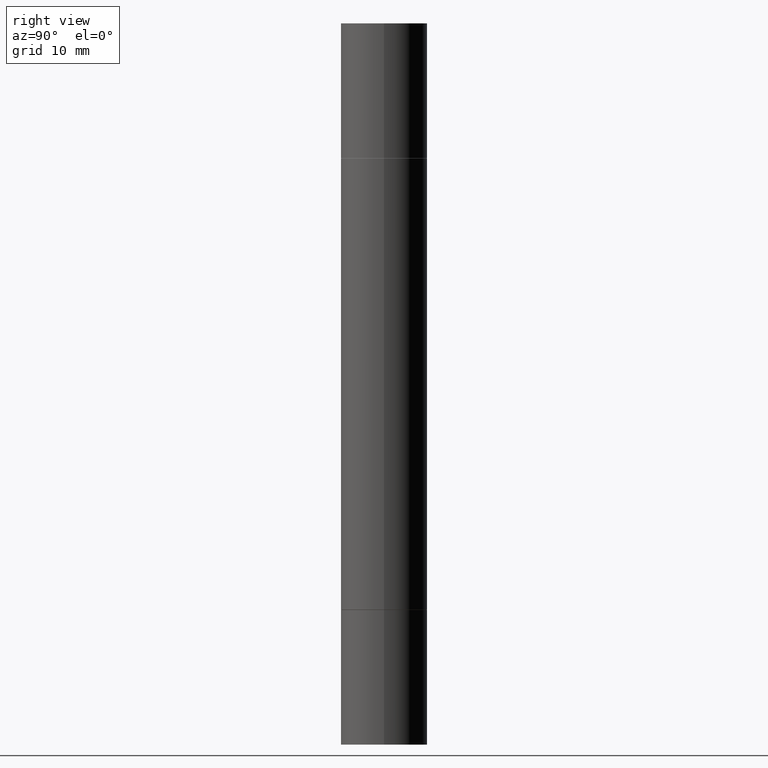
[diagram: clean part render]
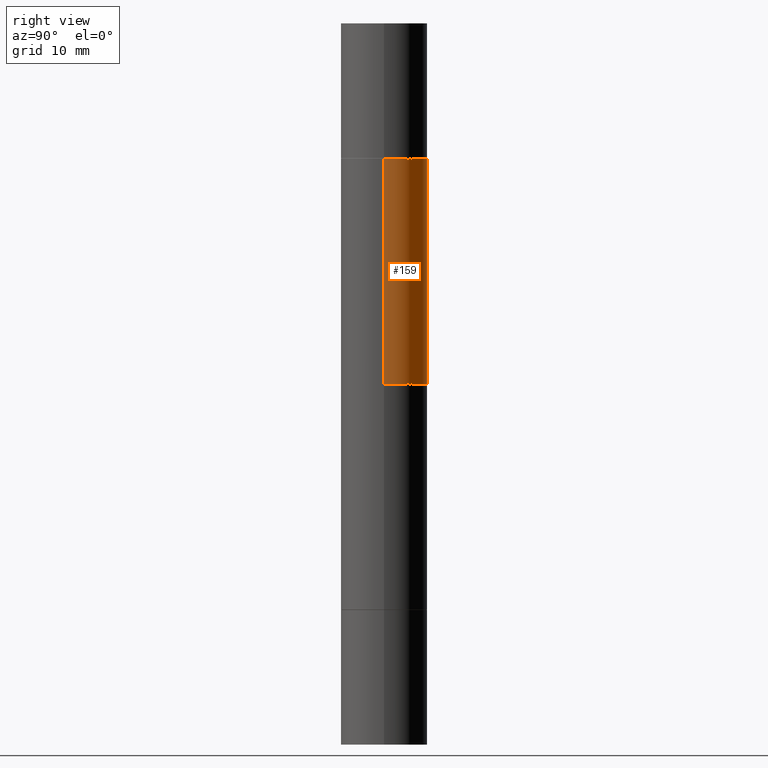
[diagram: same view with one face highlighted and labeled with its STEP entity id]
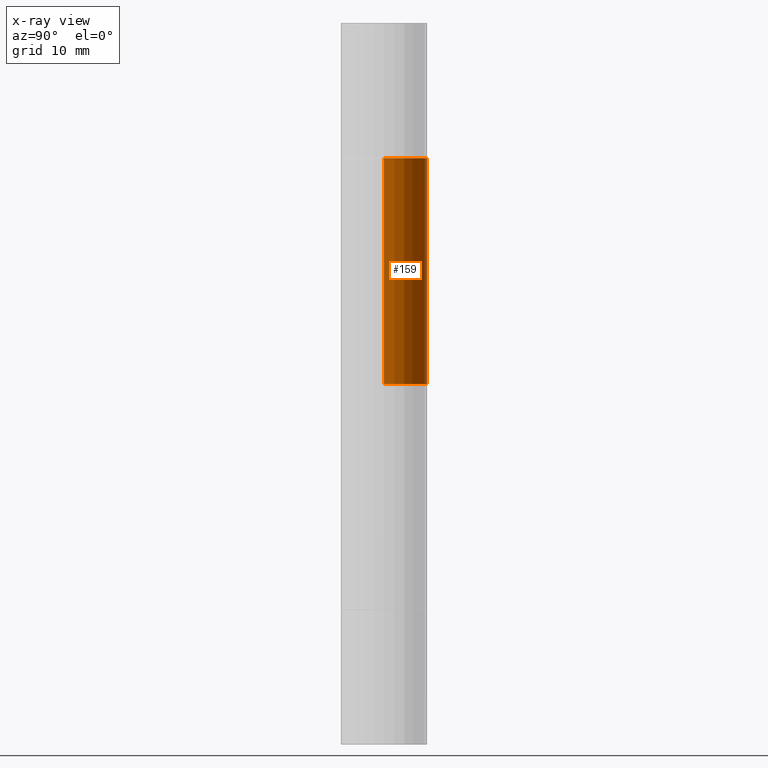
[diagram: x-ray of the same camera — body ghosted, the highlighted face saturated]
A machine part, right view. The second image highlights one B-rep face of the part: STEP entity #159.
The next image is the same camera in x-ray: the body ghosted, the highlighted face saturated — about 0% of this face is hidden behind the body in this view.
In plain terms, the highlighted cylindrical surface (partial cylindrical patch) has radius 4.4996 mm, axis along (-0, -0, -1).
Its self-contained STEP definition (entity closure, byte-faithful):
#3 = CARTESIAN_POINT ( 'NONE',  ( 0.1771500000000000019, -3.163725568664010262E-15, -0.5521999999999996911 ) ) ;
#11 = CARTESIAN_POINT ( 'NONE',  ( -0.1771499999999998909, -2.325421169184726863E-15, -1.476399999999999491 ) ) ;
#29 = CYLINDRICAL_SURFACE ( 'NONE', #38, 0.1771499999999998909 ) ;
#32 = VERTEX_POINT ( 'NONE', #11 ) ;
#38 = AXIS2_PLACEMENT_3D ( 'NONE', #179, #94, #443 ) ;
#58 = EDGE_CURVE ( 'NONE', #191, #506, #203, .T. ) ;
#64 = EDGE_CURVE ( 'NONE', #506, #32, #652, .T. ) ;
#76 = LINE ( 'NONE', #437, #262 ) ;
#78 = ORIENTED_EDGE ( 'NONE', *, *, #362, .F. ) ;
#94 = DIRECTION ( 'NONE',  ( -2.445468806185136597E-29, -3.492890411551752677E-15, -1.000000000000000000 ) ) ;
#110 = ORIENTED_EDGE ( 'NONE', *, *, #64, .F. ) ;
#125 = DIRECTION ( 'NONE',  ( 1.000000000000000000, -6.982962677686266711E-15, 0.000000000000000000 ) ) ;
#150 = CIRCLE ( 'NONE', #426, 0.1771499999999998909 ) ;
#157 = ORIENTED_EDGE ( 'NONE', *, *, #650, .T. ) ;
#158 = DIRECTION ( 'NONE',  ( -0.000000000000000000, -3.492185875197449130E-15, -1.000000000000000000 ) ) ;
#159 = ADVANCED_FACE ( 'NONE', ( #500 ), #29, .T. ) ;
#167 = CARTESIAN_POINT ( 'NONE',  ( 5.870592416128037625E-29, -1.926693730311889446E-15, -0.5521999999999996911 ) ) ;
#179 = CARTESIAN_POINT ( 'NONE',  ( 0.000000000000000000, -1.031172645228302408E-14, -2.952799999999998981 ) ) ;
#191 = VERTEX_POINT ( 'NONE', #3 ) ;
#197 = DIRECTION ( 'NONE',  ( -2.445468806185136877E-29, -3.492890411551753071E-15, -1.000000000000000000 ) ) ;
#198 = DIRECTION ( 'NONE',  ( -2.445468806185136877E-29, -3.492890411551753071E-15, -1.000000000000000000 ) ) ;
#203 = CIRCLE ( 'NONE', #418, 0.1771500000000000019 ) ;
#262 = VECTOR ( 'NONE', #197, 39.37007874015748143 ) ;
#313 = CARTESIAN_POINT ( 'NONE',  ( 3.610490145451734531E-29, -5.154823048668018475E-15, -1.476399999999999491 ) ) ;
#354 = ORIENTED_EDGE ( 'NONE', *, *, #58, .F. ) ;
#362 = EDGE_CURVE ( 'NONE', #32, #398, #150, .T. ) ;
#398 = VERTEX_POINT ( 'NONE', #580 ) ;
#404 = EDGE_LOOP ( 'NONE', ( #110, #354, #157, #78 ) ) ;
#418 = AXIS2_PLACEMENT_3D ( 'NONE', #167, #642, #125 ) ;
#426 = AXIS2_PLACEMENT_3D ( 'NONE', #313, #158, #521 ) ;
#437 = CARTESIAN_POINT ( 'NONE',  ( 0.1771499999999998909, -1.154875829063514490E-14, -2.952799999999998981 ) ) ;
#443 = DIRECTION ( 'NONE',  ( 1.000000000000000000, -6.982962677686265922E-15, 0.000000000000000000 ) ) ;
#500 = FACE_OUTER_BOUND ( 'NONE', #404, .T. ) ;
#506 = VERTEX_POINT ( 'NONE', #555 ) ;
#513 = VECTOR ( 'NONE', #198, 39.37007874015748143 ) ;
#521 = DIRECTION ( 'NONE',  ( 0.000000000000000000, 1.000000000000000000, -3.084220145260248196E-15 ) ) ;
#555 = CARTESIAN_POINT ( 'NONE',  ( -0.1771500000000000019, -7.113565100066610661E-16, -0.5521999999999996911 ) ) ;
#561 = CARTESIAN_POINT ( 'NONE',  ( -0.1771499999999998909, -9.096389231977797770E-15, -2.952799999999998981 ) ) ;
#580 = CARTESIAN_POINT ( 'NONE',  ( 0.1771499999999998909, -4.777790227842073988E-15, -1.476399999999999491 ) ) ;
#642 = DIRECTION ( 'NONE',  ( 2.445468806185136597E-29, 3.492890411551752677E-15, 1.000000000000000000 ) ) ;
#650 = EDGE_CURVE ( 'NONE', #191, #398, #76, .T. ) ;
#652 = LINE ( 'NONE', #561, #513 ) ;